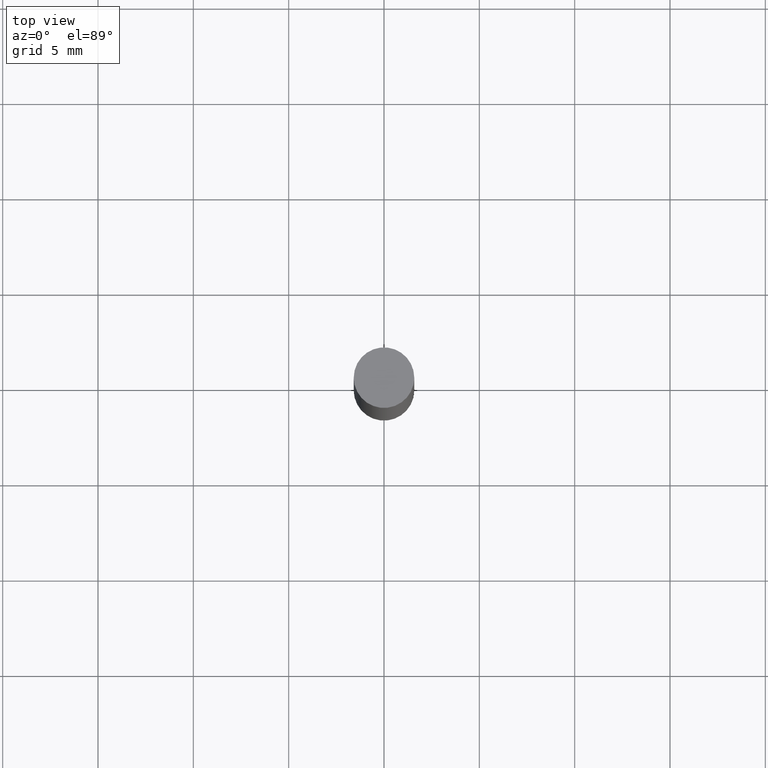
[diagram: clean part render]
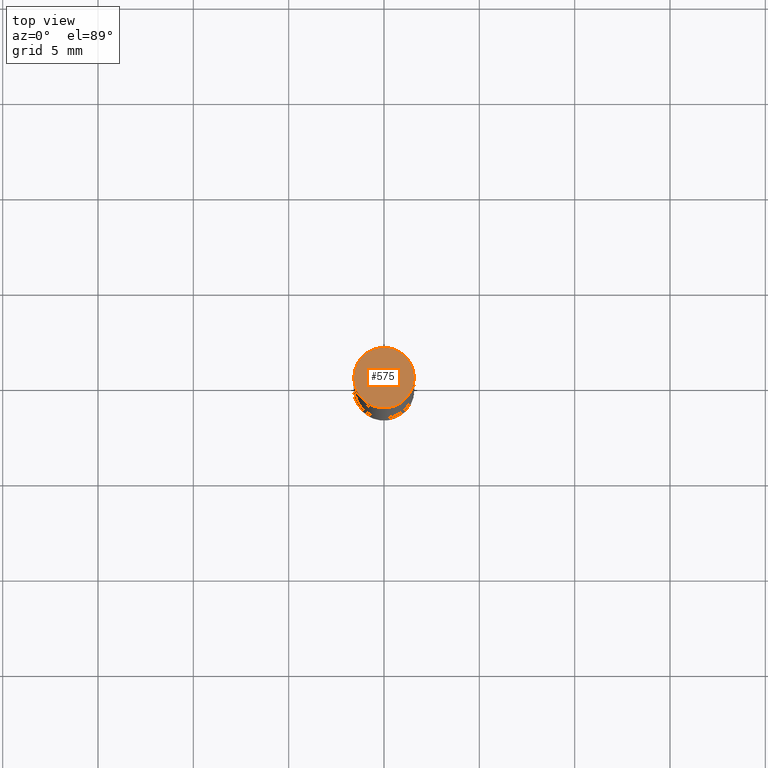
[diagram: same view with one face highlighted and labeled with its STEP entity id]
A machine part, top view. The second image highlights one B-rep face of the part: STEP entity #575.
In plain terms, the highlighted planar face has unit normal (0, 0, 1).
Its self-contained STEP definition (entity closure, byte-faithful):
#11 = DIRECTION ( 'NONE',  ( 2.445468806185136597E-29, 3.492890411551752677E-15, 1.000000000000000000 ) ) ;
#14 = CARTESIAN_POINT ( 'NONE',  ( -0.06250000000000001388, -6.773372051792008208E-18, 2.731847993664278996E-16 ) ) ;
#26 = AXIS2_PLACEMENT_3D ( 'NONE', #257, #11, #102 ) ;
#81 = ORIENTED_EDGE ( 'NONE', *, *, #483, .T. ) ;
#102 = DIRECTION ( 'NONE',  ( 1.000000000000000000, -6.982962677686267499E-15, 0.000000000000000000 ) ) ;
#154 = AXIS2_PLACEMENT_3D ( 'NONE', #199, #301, #365 ) ;
#183 = CIRCLE ( 'NONE', #631, 0.06250000000000001388 ) ;
#199 = CARTESIAN_POINT ( 'NONE',  ( 4.364351673554284500E-16, 0.06250000000000001388, 0.000000000000000000 ) ) ;
#221 = ORIENTED_EDGE ( 'NONE', *, *, #382, .T. ) ;
#225 = CIRCLE ( 'NONE', #26, 0.06250000000000001388 ) ;
#236 = CARTESIAN_POINT ( 'NONE',  ( 3.668203209277704895E-29, 1.056804531456312920E-18, 2.731847993664263218E-16 ) ) ;
#257 = CARTESIAN_POINT ( 'NONE',  ( 3.668203209277704895E-29, 1.056804531456312920E-18, 2.731847993664263218E-16 ) ) ;
#260 = FACE_OUTER_BOUND ( 'NONE', #590, .T. ) ;
#293 = VERTEX_POINT ( 'NONE', #14 ) ;
#301 = DIRECTION ( 'NONE',  ( 2.438088387897959769E-29, 3.492890411551753071E-15, 1.000000000000000000 ) ) ;
#365 = DIRECTION ( 'NONE',  ( -1.000000000000000000, 6.982962677686265922E-15, -9.839502134516470631E-33 ) ) ;
#382 = EDGE_CURVE ( 'NONE', #547, #293, #183, .T. ) ;
#483 = EDGE_CURVE ( 'NONE', #293, #547, #225, .T. ) ;
#521 = PLANE ( 'NONE',  #154 ) ;
#547 = VERTEX_POINT ( 'NONE', #638 ) ;
#575 = ADVANCED_FACE ( 'NONE', ( #260 ), #521, .T. ) ;
#590 = EDGE_LOOP ( 'NONE', ( #221, #81 ) ) ;
#631 = AXIS2_PLACEMENT_3D ( 'NONE', #236, #669, #665 ) ;
#638 = CARTESIAN_POINT ( 'NONE',  ( 0.06250000000000001388, -4.353783628239354613E-16, 2.731847993664263218E-16 ) ) ;
#665 = DIRECTION ( 'NONE',  ( 1.000000000000000000, -6.982962677686267499E-15, 0.000000000000000000 ) ) ;
#669 = DIRECTION ( 'NONE',  ( 2.445468806185136597E-29, 3.492890411551752677E-15, 1.000000000000000000 ) ) ;